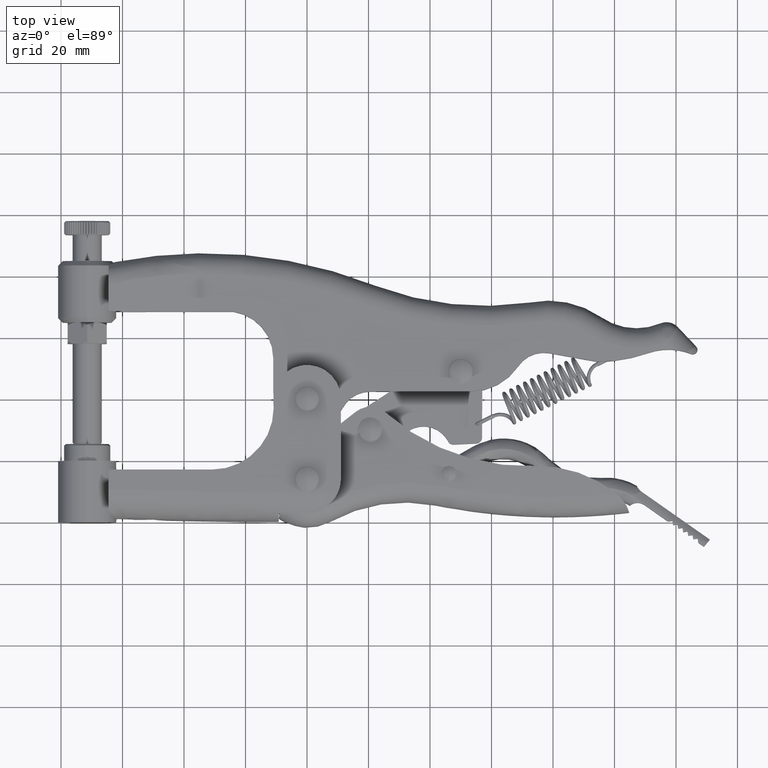
[diagram: clean part render]
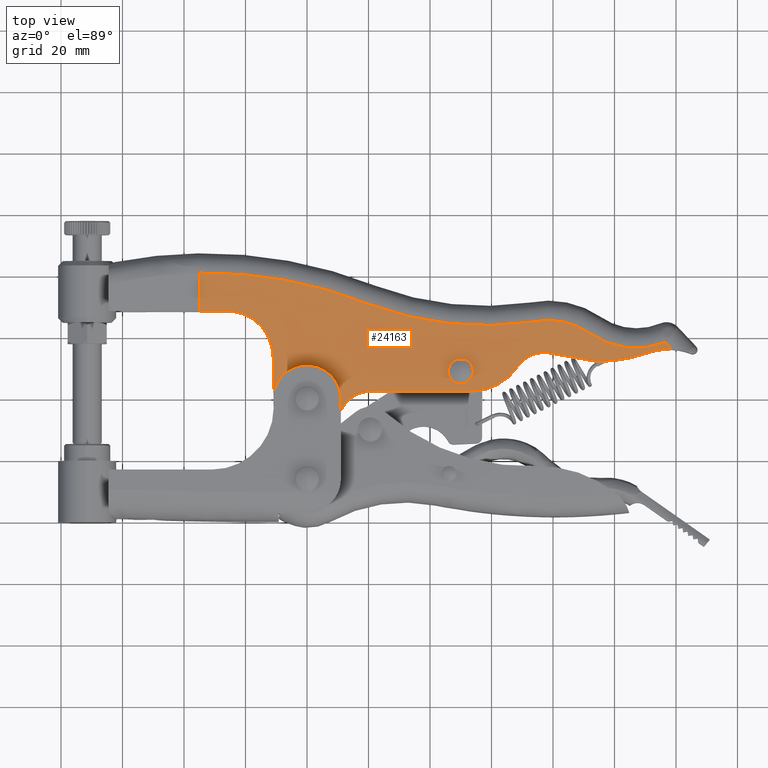
[diagram: same view with one face highlighted and labeled with its STEP entity id]
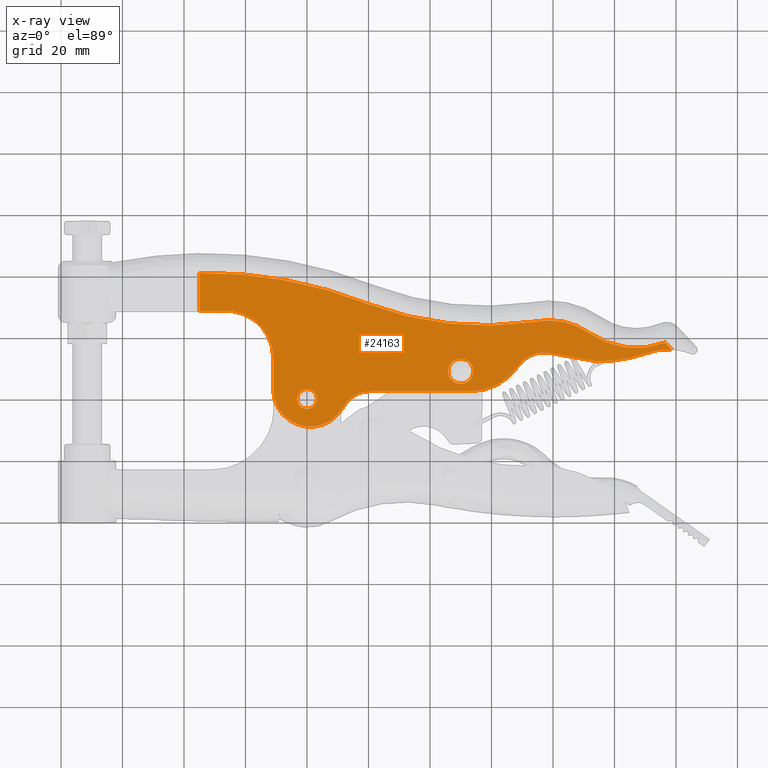
[diagram: x-ray of the same camera — body ghosted, the highlighted face saturated]
A machine part, top view. The second image highlights one B-rep face of the part: STEP entity #24163.
The next image is the same camera in x-ray: the body ghosted, the highlighted face saturated — about 0% of this face is hidden behind the body in this view.
In plain terms, the highlighted planar face has unit normal (0, 0, -1).
Its self-contained STEP definition (entity closure, byte-faithful):
#6 = VERTEX_POINT ( 'NONE', #27629 ) ;
#291 = CIRCLE ( 'NONE', #15010, 4.063249930782012200 ) ;
#319 = DIRECTION ( 'NONE',  ( -1.000000000000000000, 0.0000000000000000000, 0.0000000000000000000 ) ) ;
#634 = CARTESIAN_POINT ( 'NONE',  ( -35.00009358682923700, 40.98672685063045400, 6.500000000000000000 ) ) ;
#922 = CARTESIAN_POINT ( 'NONE',  ( -35.00000000000002800, 47.50100000000001200, 6.500000000000000000 ) ) ;
#1084 = DIRECTION ( 'NONE',  ( -0.0000000000000000000, -0.0000000000000000000, -1.000000000000000000 ) ) ;
#2118 = ORIENTED_EDGE ( 'NONE', *, *, #20054, .T. ) ;
#2288 = LINE ( 'NONE', #20151, #9301 ) ;
#2496 = CIRCLE ( 'NONE', #5819, 3.200000000000000600 ) ;
#2547 = EDGE_CURVE ( 'NONE', #25820, #7550, #19193, .T. ) ;
#2561 = CARTESIAN_POINT ( 'NONE',  ( 57.79999999999997600, 130.4000000000000100, 6.500000000000000000 ) ) ;
#2574 = DIRECTION ( 'NONE',  ( -0.0000000000000000000, -0.0000000000000000000, -1.000000000000000000 ) ) ;
#2647 = ORIENTED_EDGE ( 'NONE', *, *, #26147, .T. ) ;
#2724 = EDGE_CURVE ( 'NONE', #30577, #26250, #30327, .T. ) ;
#2966 = LINE ( 'NONE', #7495, #15539 ) ;
#3056 = EDGE_CURVE ( 'NONE', #17658, #9405, #15668, .T. ) ;
#3075 = DIRECTION ( 'NONE',  ( -0.0000000000000000000, -0.0000000000000000000, -1.000000000000000000 ) ) ;
#3205 = CARTESIAN_POINT ( 'NONE',  ( -10.99999999999996400, 13.50000000000002000, 6.500000000000000000 ) ) ;
#3278 = DIRECTION ( 'NONE',  ( 0.0000000000000000000, 0.0000000000000000000, 1.000000000000000000 ) ) ;
#3312 = LINE ( 'NONE', #27806, #15149 ) ;
#3345 = AXIS2_PLACEMENT_3D ( 'NONE', #7881, #24472, #10266 ) ;
#3455 = DIRECTION ( 'NONE',  ( -0.0000000000000000000, -0.0000000000000000000, -1.000000000000000000 ) ) ;
#3598 = EDGE_CURVE ( 'NONE', #7550, #25820, #291, .T. ) ;
#4722 = VERTEX_POINT ( 'NONE', #22502 ) ;
#4745 = CARTESIAN_POINT ( 'NONE',  ( 78.50000000000000000, 2.100000000000001900, 6.500000000000000000 ) ) ;
#4928 = DIRECTION ( 'NONE',  ( -1.000000000000000000, 0.0000000000000000000, 0.0000000000000000000 ) ) ;
#5562 = DIRECTION ( 'NONE',  ( -2.680936281055062800E-015, -1.000000000000000000, 0.0000000000000000000 ) ) ;
#5819 = AXIS2_PLACEMENT_3D ( 'NONE', #17647, #3455, #20023 ) ;
#5891 = CARTESIAN_POINT ( 'NONE',  ( 78.76865090834762400, 15.00333610612100300, 6.500000000000000000 ) ) ;
#5961 = VERTEX_POINT ( 'NONE', #6800 ) ;
#5978 = ORIENTED_EDGE ( 'NONE', *, *, #29454, .T. ) ;
#6765 = CARTESIAN_POINT ( 'NONE',  ( -10.99999999999998000, 2.500000000000012000, 6.500000000000000000 ) ) ;
#6800 = CARTESIAN_POINT ( 'NONE',  ( -23.99999999999991100, 28.49999999999999600, 6.500000000000000000 ) ) ;
#6926 = DIRECTION ( 'NONE',  ( -0.0000000000000000000, 0.0000000000000000000, -1.000000000000000000 ) ) ;
#6982 = ORIENTED_EDGE ( 'NONE', *, *, #11242, .T. ) ;
#6984 = DIRECTION ( 'NONE',  ( 0.0000000000000000000, 0.0000000000000000000, 1.000000000000000000 ) ) ;
#7021 = ORIENTED_EDGE ( 'NONE', *, *, #23385, .F. ) ;
#7068 = ORIENTED_EDGE ( 'NONE', *, *, #2724, .F. ) ;
#7112 = DIRECTION ( 'NONE',  ( -1.000000000000000000, -5.333351963375502900E-015, 0.0000000000000000000 ) ) ;
#7181 = CARTESIAN_POINT ( 'NONE',  ( 20.46618531261946900, -7.499999999999978700, 6.500000000000000000 ) ) ;
#7324 = VERTEX_POINT ( 'NONE', #16334 ) ;
#7376 = EDGE_CURVE ( 'NONE', #6, #7740, #9175, .T. ) ;
#7420 = AXIS2_PLACEMENT_3D ( 'NONE', #10344, #26945, #12741 ) ;
#7495 = CARTESIAN_POINT ( 'NONE',  ( -64.50000000000000000, 28.49999999999997200, 6.500000000000000000 ) ) ;
#7550 = VERTEX_POINT ( 'NONE', #17452 ) ;
#7740 = VERTEX_POINT ( 'NONE', #27497 ) ;
#7877 = ORIENTED_EDGE ( 'NONE', *, *, #22961, .F. ) ;
#7881 = CARTESIAN_POINT ( 'NONE',  ( 1.059168550412829900, 3.009488794604604900, 6.500000000000000000 ) ) ;
#8192 = LINE ( 'NONE', #922, #19322 ) ;
#8259 = ORIENTED_EDGE ( 'NONE', *, *, #10326, .T. ) ;
#8908 = VECTOR ( 'NONE', #5562, 1000.000000000000000 ) ;
#9001 = CARTESIAN_POINT ( 'NONE',  ( 78.76865090834762400, 15.00333610612100300, 6.500000000000000000 ) ) ;
#9172 = CARTESIAN_POINT ( 'NONE',  ( 50.00000000000006400, 9.000000000000007100, 6.500000000000000000 ) ) ;
#9175 = CIRCLE ( 'NONE', #26425, 23.50000000000000000 ) ;
#9301 = VECTOR ( 'NONE', #22531, 1000.000000000000100 ) ;
#9405 = VERTEX_POINT ( 'NONE', #30655 ) ;
#9473 = VERTEX_POINT ( 'NONE', #28486 ) ;
#9547 = DIRECTION ( 'NONE',  ( 1.000000000000000000, 0.0000000000000000000, 0.0000000000000000000 ) ) ;
#9633 = LINE ( 'NONE', #3205, #8908 ) ;
#10266 = DIRECTION ( 'NONE',  ( 1.000000000000000000, 0.0000000000000000000, 0.0000000000000000000 ) ) ;
#10326 = EDGE_CURVE ( 'NONE', #12334, #7324, #2496, .T. ) ;
#10344 = CARTESIAN_POINT ( 'NONE',  ( -26.15384615384611400, 13.50000000000001200, 6.500000000000000000 ) ) ;
#11169 = DIRECTION ( 'NONE',  ( -0.0000000000000000000, -0.0000000000000000000, -1.000000000000000000 ) ) ;
#11204 = DIRECTION ( 'NONE',  ( -1.000000000000000000, 5.829433085628510900E-016, 0.0000000000000000000 ) ) ;
#11242 = EDGE_CURVE ( 'NONE', #9473, #17658, #27658, .T. ) ;
#11475 = CARTESIAN_POINT ( 'NONE',  ( 77.00000000000005700, 5.160985067654513300, 6.500000000000000000 ) ) ;
#11549 = DIRECTION ( 'NONE',  ( -1.000000000000000000, 0.0000000000000000000, 0.0000000000000000000 ) ) ;
#11595 = CARTESIAN_POINT ( 'NONE',  ( -33.04837186164402900, -102.5000000000000300, 6.500000000000000000 ) ) ;
#11603 = ORIENTED_EDGE ( 'NONE', *, *, #22793, .T. ) ;
#11865 = AXIS2_PLACEMENT_3D ( 'NONE', #21182, #6984, #23561 ) ;
#12065 = VERTEX_POINT ( 'NONE', #20690 ) ;
#12334 = VERTEX_POINT ( 'NONE', #30722 ) ;
#12447 = EDGE_LOOP ( 'NONE', ( #15345, #16304, #17173, #22855, #15590, #5978, #6982, #19795, #27941, #11603, #2647, #2118, #14628, #24991, #7021, #7877, #26190, #7068 ) ) ;
#12741 = DIRECTION ( 'NONE',  ( -1.000000000000000000, 0.0000000000000000000, 0.0000000000000000000 ) ) ;
#13430 = EDGE_CURVE ( 'NONE', #21994, #30577, #22771, .T. ) ;
#13993 = DIRECTION ( 'NONE',  ( -1.000000000000000000, -5.319012748639685800E-015, 0.0000000000000000000 ) ) ;
#14050 = FACE_BOUND ( 'NONE', #21698, .T. ) ;
#14406 = AXIS2_PLACEMENT_3D ( 'NONE', #16748, #2574, #19134 ) ;
#14475 = DIRECTION ( 'NONE',  ( -0.0000000000000000000, -0.0000000000000000000, -1.000000000000000000 ) ) ;
#14594 = CARTESIAN_POINT ( 'NONE',  ( -35.00000000000002800, 40.97898228048842400, 6.500000000000000000 ) ) ;
#14628 = ORIENTED_EDGE ( 'NONE', *, *, #15984, .T. ) ;
#15010 = AXIS2_PLACEMENT_3D ( 'NONE', #9172, #25761, #11549 ) ;
#15041 = AXIS2_PLACEMENT_3D ( 'NONE', #7181, #23754, #9547 ) ;
#15149 = VECTOR ( 'NONE', #11204, 1000.000000000000000 ) ;
#15246 = CARTESIAN_POINT ( 'NONE',  ( 107.1000000000000200, 43.11268096576959200, 6.500000000000000000 ) ) ;
#15345 = ORIENTED_EDGE ( 'NONE', *, *, #13430, .F. ) ;
#15350 = CARTESIAN_POINT ( 'NONE',  ( -10.99999999999996400, 13.50000000000002000, 6.500000000000000000 ) ) ;
#15539 = VECTOR ( 'NONE', #24087, 1000.000000000000000 ) ;
#15590 = ORIENTED_EDGE ( 'NONE', *, *, #7376, .T. ) ;
#15647 = EDGE_CURVE ( 'NONE', #26250, #12065, #26788, .T. ) ;
#15668 = B_SPLINE_CURVE_WITH_KNOTS ( 'NONE', 3,
 ( #634, #28993, #14594, #17182 ),
 .UNSPECIFIED., .F., .F.,
 ( 4, 4 ),
 ( 0.0000000000000000000, 1.161742065505149600E-005 ),
 .UNSPECIFIED. ) ;
#15689 = EDGE_CURVE ( 'NONE', #16472, #27949, #20499, .T. ) ;
#15702 = CARTESIAN_POINT ( 'NONE',  ( 94.36865090834764700, 12.20004712949442000, 6.500000000000000000 ) ) ;
#15984 = EDGE_CURVE ( 'NONE', #23460, #27949, #23809, .T. ) ;
#16304 = ORIENTED_EDGE ( 'NONE', *, *, #19217, .F. ) ;
#16334 = CARTESIAN_POINT ( 'NONE',  ( -3.200000000000000600, 3.918869757271531000E-016, 6.499999999999999100 ) ) ;
#16346 = PLANE ( 'NONE',  #16755 ) ;
#16472 = VERTEX_POINT ( 'NONE', #23828 ) ;
#16649 = VERTEX_POINT ( 'NONE', #26617 ) ;
#16748 = CARTESIAN_POINT ( 'NONE',  ( 94.30000000000005400, 62.20000000000001000, 6.500000000000000000 ) ) ;
#16755 = AXIS2_PLACEMENT_3D ( 'NONE', #11475, #6926, #23499 ) ;
#17173 = ORIENTED_EDGE ( 'NONE', *, *, #20886, .T. ) ;
#17182 = CARTESIAN_POINT ( 'NONE',  ( -35.00000000000002100, 40.97510980693673600, 6.500000000000000000 ) ) ;
#17254 = CARTESIAN_POINT ( 'NONE',  ( 53.20000000000003800, 21.20000000000002800, 6.500000000000000000 ) ) ;
#17382 = EDGE_CURVE ( 'NONE', #9405, #26708, #8192, .T. ) ;
#17452 = CARTESIAN_POINT ( 'NONE',  ( 50.00000000000006400, 13.06324993078201800, 6.499999999999999100 ) ) ;
#17462 = CARTESIAN_POINT ( 'NONE',  ( 117.5000000000000700, -3.843621947921584100, 6.500000000000000000 ) ) ;
#17571 = CIRCLE ( 'NONE', #25171, 106.5000000000000000 ) ;
#17643 = DIRECTION ( 'NONE',  ( -1.000000000000000000, 0.0000000000000000000, 0.0000000000000000000 ) ) ;
#17647 = CARTESIAN_POINT ( 'NONE',  ( 0.0000000000000000000, 0.0000000000000000000, 6.499999999999999100 ) ) ;
#17658 = VERTEX_POINT ( 'NONE', #22947 ) ;
#18222 = EDGE_CURVE ( 'NONE', #16649, #6, #29713, .T. ) ;
#18454 = DIRECTION ( 'NONE',  ( -0.9842351038466434800, 0.1768650908347572100, -0.0000000000000000000 ) ) ;
#18678 = EDGE_LOOP ( 'NONE', ( #8259, #30063 ) ) ;
#18870 = CIRCLE ( 'NONE', #24705, 3.200000000000000600 ) ;
#18945 = AXIS2_PLACEMENT_3D ( 'NONE', #11595, #28191, #13993 ) ;
#19121 = DIRECTION ( 'NONE',  ( -0.0000000000000000000, -0.0000000000000000000, -1.000000000000000000 ) ) ;
#19134 = DIRECTION ( 'NONE',  ( 1.000000000000000000, 0.0000000000000000000, 0.0000000000000000000 ) ) ;
#19193 = CIRCLE ( 'NONE', #19958, 4.063249930782012200 ) ;
#19217 = EDGE_CURVE ( 'NONE', #22400, #21994, #20060, .T. ) ;
#19322 = VECTOR ( 'NONE', #29083, 1000.000000000000000 ) ;
#19619 = CIRCLE ( 'NONE', #24880, 18.69999999999999600 ) ;
#19629 = DIRECTION ( 'NONE',  ( 1.000000000000000000, 0.0000000000000000000, 0.0000000000000000000 ) ) ;
#19795 = ORIENTED_EDGE ( 'NONE', *, *, #3056, .T. ) ;
#19851 = DIRECTION ( 'NONE',  ( 1.000000000000000000, 0.0000000000000000000, 0.0000000000000000000 ) ) ;
#19958 = AXIS2_PLACEMENT_3D ( 'NONE', #25396, #11169, #27776 ) ;
#20023 = DIRECTION ( 'NONE',  ( -1.000000000000000000, 0.0000000000000000000, 0.0000000000000000000 ) ) ;
#20054 = EDGE_CURVE ( 'NONE', #21689, #23460, #9633, .T. ) ;
#20060 = CIRCLE ( 'NONE', #22830, 19.99999999999998900 ) ;
#20151 = CARTESIAN_POINT ( 'NONE',  ( 104.4404469129895000, 31.10732726929932200, 6.500000000000000000 ) ) ;
#20339 = FACE_BOUND ( 'NONE', #18678, .T. ) ;
#20499 = CIRCLE ( 'NONE', #15041, 10.00000000000004400 ) ;
#20690 = CARTESIAN_POINT ( 'NONE',  ( 68.70731707317075600, 10.74949201272266400, 6.500000000000000000 ) ) ;
#20886 = EDGE_CURVE ( 'NONE', #22400, #16649, #2288, .T. ) ;
#20952 = CARTESIAN_POINT ( 'NONE',  ( 110.8714285714286400, 15.02598432291313900, 6.500000000000000000 ) ) ;
#21101 = FACE_OUTER_BOUND ( 'NONE', #12447, .T. ) ;
#21182 = CARTESIAN_POINT ( 'NONE',  ( 77.00000000000005700, 5.160985067654513300, 6.500000000000000000 ) ) ;
#21314 = DIRECTION ( 'NONE',  ( 0.0000000000000000000, 0.0000000000000000000, 1.000000000000000000 ) ) ;
#21689 = VERTEX_POINT ( 'NONE', #15350 ) ;
#21698 = EDGE_LOOP ( 'NONE', ( #23241, #29461 ) ) ;
#21994 = VERTEX_POINT ( 'NONE', #20952 ) ;
#22400 = VERTEX_POINT ( 'NONE', #26711 ) ;
#22502 = CARTESIAN_POINT ( 'NONE',  ( 53.20000000000003800, 2.500000000000030200, 6.500000000000000000 ) ) ;
#22531 = DIRECTION ( 'NONE',  ( -0.6870483900220131200, 0.7266116636609679700, 0.0000000000000000000 ) ) ;
#22771 = CIRCLE ( 'NONE', #14406, 49.99999999999998600 ) ;
#22793 = EDGE_CURVE ( 'NONE', #26708, #5961, #2966, .T. ) ;
#22830 = AXIS2_PLACEMENT_3D ( 'NONE', #17462, #3278, #19851 ) ;
#22855 = ORIENTED_EDGE ( 'NONE', *, *, #18222, .T. ) ;
#22947 = CARTESIAN_POINT ( 'NONE',  ( -35.00009358682923700, 40.98672685063045400, 6.500000000000000000 ) ) ;
#22961 = EDGE_CURVE ( 'NONE', #12065, #4722, #19619, .T. ) ;
#23241 = ORIENTED_EDGE ( 'NONE', *, *, #3598, .T. ) ;
#23276 = VECTOR ( 'NONE', #18454, 1000.000000000000100 ) ;
#23385 = EDGE_CURVE ( 'NONE', #4722, #16472, #3312, .T. ) ;
#23460 = VERTEX_POINT ( 'NONE', #6765 ) ;
#23499 = DIRECTION ( 'NONE',  ( -1.000000000000000000, 0.0000000000000000000, 0.0000000000000000000 ) ) ;
#23561 = DIRECTION ( 'NONE',  ( 1.000000000000000000, 0.0000000000000000000, 0.0000000000000000000 ) ) ;
#23754 = DIRECTION ( 'NONE',  ( 0.0000000000000000000, 0.0000000000000000000, 1.000000000000000000 ) ) ;
#23809 = CIRCLE ( 'NONE', #3345, 12.06992646866968500 ) ;
#23828 = CARTESIAN_POINT ( 'NONE',  ( 20.46618531261946900, 2.500000000000066600, 6.500000000000000000 ) ) ;
#23838 = CARTESIAN_POINT ( 'NONE',  ( 50.00000000000006400, 4.936750069217997500, 6.499999999999999100 ) ) ;
#24087 = DIRECTION ( 'NONE',  ( 1.000000000000000000, 6.853228547068853600E-016, 0.0000000000000000000 ) ) ;
#24163 = ADVANCED_FACE ( 'NONE', ( #20339, #14050, #21101 ), #16346, .F. ) ;
#24345 = EDGE_CURVE ( 'NONE', #7324, #12334, #18870, .T. ) ;
#24472 = DIRECTION ( 'NONE',  ( 0.0000000000000000000, 0.0000000000000000000, 1.000000000000000000 ) ) ;
#24705 = AXIS2_PLACEMENT_3D ( 'NONE', #28675, #14475, #319 ) ;
#24880 = AXIS2_PLACEMENT_3D ( 'NONE', #17254, #3075, #19629 ) ;
#24991 = ORIENTED_EDGE ( 'NONE', *, *, #15689, .F. ) ;
#25171 = AXIS2_PLACEMENT_3D ( 'NONE', #2561, #19121, #4928 ) ;
#25178 = CARTESIAN_POINT ( 'NONE',  ( 11.67276373518158100, -2.738095238095239000, 6.500000000000000000 ) ) ;
#25396 = CARTESIAN_POINT ( 'NONE',  ( 50.00000000000006400, 9.000000000000007100, 6.500000000000000000 ) ) ;
#25761 = DIRECTION ( 'NONE',  ( -0.0000000000000000000, -0.0000000000000000000, -1.000000000000000000 ) ) ;
#25820 = VERTEX_POINT ( 'NONE', #23838 ) ;
#26147 = EDGE_CURVE ( 'NONE', #5961, #21689, #27335, .T. ) ;
#26190 = ORIENTED_EDGE ( 'NONE', *, *, #15647, .F. ) ;
#26250 = VERTEX_POINT ( 'NONE', #5891 ) ;
#26425 = AXIS2_PLACEMENT_3D ( 'NONE', #4745, #21314, #7112 ) ;
#26617 = CARTESIAN_POINT ( 'NONE',  ( 116.5121444817128800, 18.34048816304492700, 6.500000000000000000 ) ) ;
#26708 = VERTEX_POINT ( 'NONE', #30653 ) ;
#26711 = CARTESIAN_POINT ( 'NONE',  ( 118.6062848568346600, 16.12575795771238100, 6.500000000000000000 ) ) ;
#26788 = CIRCLE ( 'NONE', #11865, 10.00000000000005000 ) ;
#26945 = DIRECTION ( 'NONE',  ( -0.0000000000000000000, -0.0000000000000000000, -1.000000000000000000 ) ) ;
#27335 = CIRCLE ( 'NONE', #7420, 15.15384615384614600 ) ;
#27497 = CARTESIAN_POINT ( 'NONE',  ( 73.52442355761219500, 25.06722967765062300, 6.500000000000000000 ) ) ;
#27629 = CARTESIAN_POINT ( 'NONE',  ( 91.94199999999999300, 21.37596005391169400, 6.500000000000000000 ) ) ;
#27658 = CIRCLE ( 'NONE', #18945, 143.5000000000000300 ) ;
#27776 = DIRECTION ( 'NONE',  ( -1.000000000000000000, 0.0000000000000000000, 0.0000000000000000000 ) ) ;
#27806 = CARTESIAN_POINT ( 'NONE',  ( 53.20000000000003800, 2.500000000000030200, 6.500000000000000000 ) ) ;
#27941 = ORIENTED_EDGE ( 'NONE', *, *, #17382, .T. ) ;
#27949 = VERTEX_POINT ( 'NONE', #25178 ) ;
#28191 = DIRECTION ( 'NONE',  ( 0.0000000000000000000, 0.0000000000000000000, 1.000000000000000000 ) ) ;
#28486 = CARTESIAN_POINT ( 'NONE',  ( 20.03903481141261300, 30.81908060262604100, 6.500000000000000000 ) ) ;
#28675 = CARTESIAN_POINT ( 'NONE',  ( 0.0000000000000000000, 0.0000000000000000000, 6.499999999999999100 ) ) ;
#28789 = AXIS2_PLACEMENT_3D ( 'NONE', #15246, #1084, #17643 ) ;
#28993 = CARTESIAN_POINT ( 'NONE',  ( -35.00003119238689200, 40.98285487977028700, 6.500000000000000000 ) ) ;
#29083 = DIRECTION ( 'NONE',  ( 6.853228547068852600E-016, -1.000000000000000000, 0.0000000000000000000 ) ) ;
#29454 = EDGE_CURVE ( 'NONE', #7740, #9473, #17571, .T. ) ;
#29461 = ORIENTED_EDGE ( 'NONE', *, *, #2547, .T. ) ;
#29713 = CIRCLE ( 'NONE', #28789, 26.50000000000002500 ) ;
#30063 = ORIENTED_EDGE ( 'NONE', *, *, #24345, .T. ) ;
#30327 = LINE ( 'NONE', #9001, #23276 ) ;
#30577 = VERTEX_POINT ( 'NONE', #15702 ) ;
#30653 = CARTESIAN_POINT ( 'NONE',  ( -35.00000000000003600, 28.49999999999998900, 6.500000000000000000 ) ) ;
#30655 = CARTESIAN_POINT ( 'NONE',  ( -35.00000000000002100, 40.97510980693673600, 6.500000000000000000 ) ) ;
#30722 = CARTESIAN_POINT ( 'NONE',  ( 3.200000000000000600, 0.0000000000000000000, 6.499999999999999100 ) ) ;